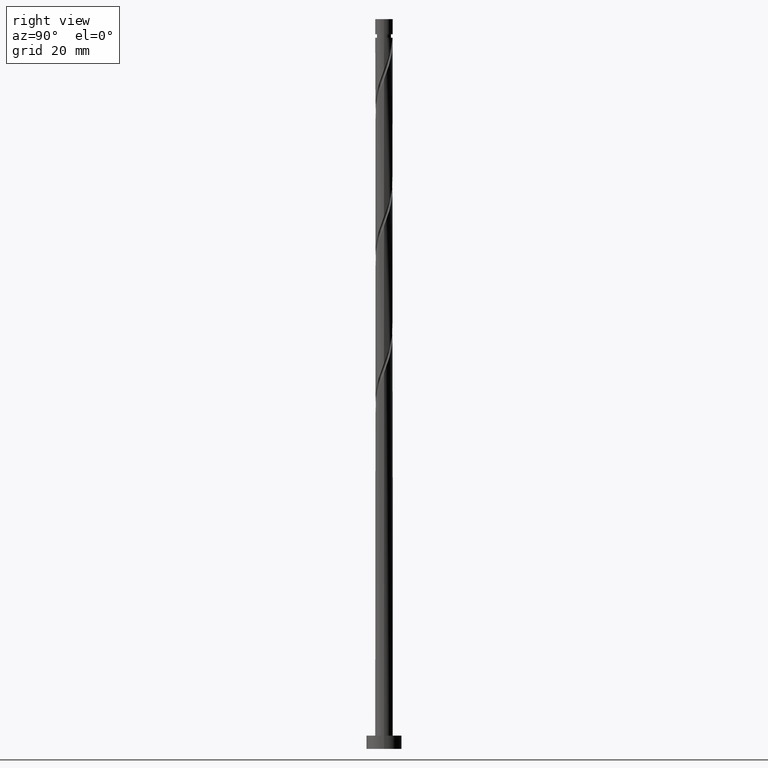
[diagram: clean part render]
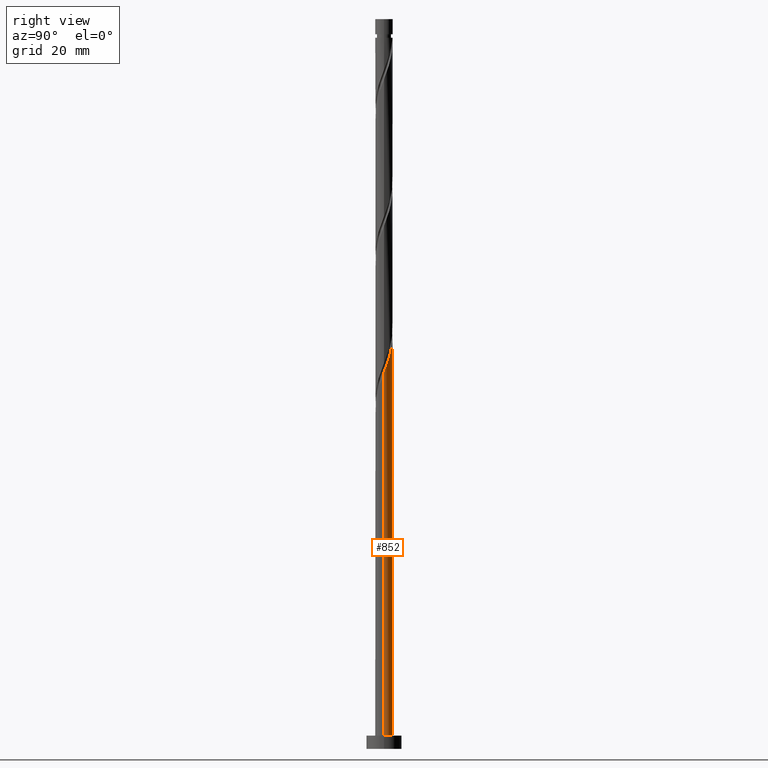
[diagram: same view with one face highlighted and labeled with its STEP entity id]
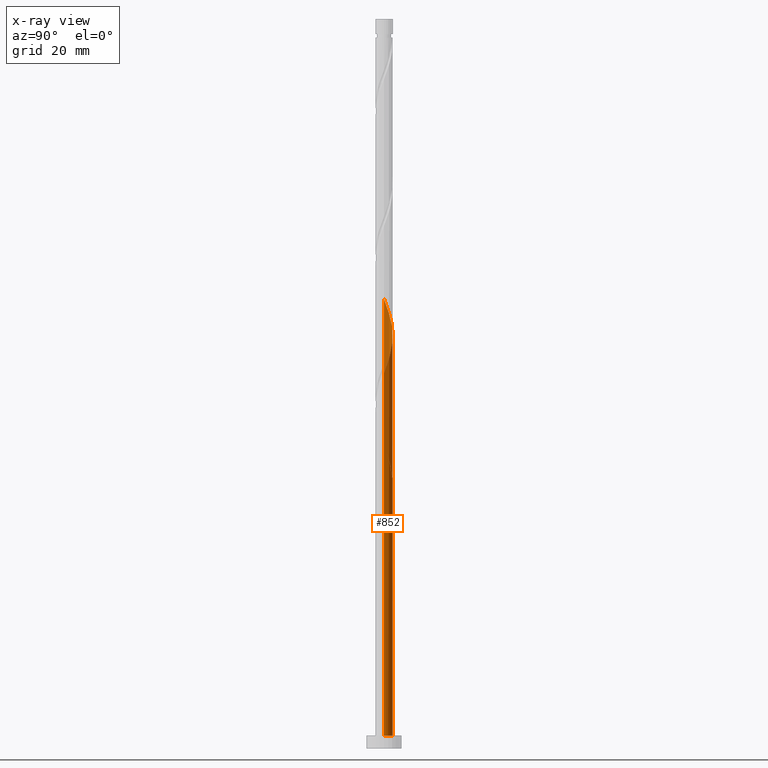
[diagram: x-ray of the same camera — body ghosted, the highlighted face saturated]
A machine part, right view. The second image highlights one B-rep face of the part: STEP entity #852.
The next image is the same camera in x-ray: the body ghosted, the highlighted face saturated — about 0% of this face is hidden behind the body in this view.
In plain terms, the highlighted cylindrical surface (edge-blend (fillet) strip) has radius 2 mm, axis along (-0, -0, -1).
Its self-contained STEP definition (entity closure, byte-faithful):
#31 = FACE_OUTER_BOUND ( 'NONE', #1508, .T. ) ;
#60 = DIRECTION ( 'NONE',  ( 1.000000000000000000, 0.000000000000000000, 0.000000000000000000 ) ) ;
#90 = CARTESIAN_POINT ( 'NONE',  ( -1.907602967534731686, 0.6560338701139444284, 69.20086395896032627 ) ) ;
#93 = CARTESIAN_POINT ( 'NONE',  ( -0.6560338701139447615, 1.907602967534735239, 62.25641951451586209 ) ) ;
#114 = CARTESIAN_POINT ( 'NONE',  ( 1.960000000000003073, 0.3979949748426481748, 86.56197507007139791 ) ) ;
#124 = CARTESIAN_POINT ( 'NONE',  ( 0.8849929959097684318, 1.812764992401017849, 91.42308618118254060 ) ) ;
#132 = CARTESIAN_POINT ( 'NONE',  ( -1.812764992401018072, 0.8849929959097678767, 99.75641951451584077 ) ) ;
#206 = CARTESIAN_POINT ( 'NONE',  ( 2.000000000000001776, 0.2010075630518461387, 86.03183478405064477 ) ) ;
#207 = CARTESIAN_POINT ( 'NONE',  ( 2.000000000000000000, 2.449293598294706414E-16, 165.8000000000000114 ) ) ;
#210 = LINE ( 'NONE', #326, #278 ) ;
#222 = CARTESIAN_POINT ( 'NONE',  ( -1.667354236715041349, 1.104504345536228671, 65.72864173673808352 ) ) ;
#225 = CARTESIAN_POINT ( 'NONE',  ( 2.000000000000002665, -8.972270666171985530E-17, 85.49840841486135901 ) ) ;
#227 = CARTESIAN_POINT ( 'NONE',  ( 0.000000000000000000, 0.000000000000000000, 61.56197507007141212 ) ) ;
#256 = CARTESIAN_POINT ( 'NONE',  ( -1.324673758792283662, 1.498412303996178307, 97.67308618118251218 ) ) ;
#271 = VERTEX_POINT ( 'NONE', #563 ) ;
#275 = CARTESIAN_POINT ( 'NONE',  ( 1.790205940182200806, 0.8917189533347229524, 87.95086395896029785 ) ) ;
#278 = VECTOR ( 'NONE', #360, 1000.000000000000000 ) ;
#280 = CYLINDRICAL_SURFACE ( 'NONE', #1551, 2.000000000000000000 ) ;
#282 =( BOUNDED_CURVE ( )  B_SPLINE_CURVE ( 2, ( #1339, #93, #1730, #1199, #1208, #673, #222, #535, #1711, #1066, #937, #1721, #1608 ),
 .UNSPECIFIED., .F., .T. ) 
 B_SPLINE_CURVE_WITH_KNOTS ( ( 3, 2, 2, 2, 2, 2, 3 ),
 ( 0.000000000000000000, 0.01041666666666662966, 0.02083333333333337034, 0.03125000000000000000, 0.04166666666666662966, 0.05208333333333336340, 0.05453176698144644036 ),
 .UNSPECIFIED. ) 
 CURVE ( )  GEOMETRIC_REPRESENTATION_ITEM ( )  RATIONAL_B_SPLINE_CURVE ( ( 0.9090909090909310430, 0.9013135103398492998, 0.9090909090909310430, 0.9013135103398492998, 0.9090909090909310430, 0.9013135103398492998, 0.9090909090909310430, 0.9013135103398492998, 0.9090909090909310430, 0.9013135103398492998, 0.9090909090909310430, 0.9072628343904245440, 0.9062941362546510504 ) ) 
 REPRESENTATION_ITEM ( '' )  );
#293 = VERTEX_POINT ( 'NONE', #1362 ) ;
#326 = CARTESIAN_POINT ( 'NONE',  ( -2.000000000000000000, 0.000000000000000000, 165.8000000000000114 ) ) ;
#328 = VERTEX_POINT ( 'NONE', #701 ) ;
#342 =( BOUNDED_CURVE ( )  B_SPLINE_CURVE ( 2, ( #1327, #206, #114, #1717, #275, #1357, #1061, #819, #1471, #124, #810, #414, #1345, #1622, #1214, #397, #670, #1602, #256, #1336, #952, #132, #541, #1080, #1614, #803, #933 ),
 .UNSPECIFIED., .F., .T. ) 
 B_SPLINE_CURVE_WITH_KNOTS ( ( 3, 2, 2, 2, 2, 2, 2, 2, 2, 2, 2, 2, 2, 3 ),
 ( 0.1795317669814465167, 0.1875000000000000000, 0.1979166666666666297, 0.2083333333333333703, 0.2187500000000000000, 0.2291666666666666297, 0.2395833333333333703, 0.2500000000000000000, 0.2604166666666666297, 0.2708333333333333703, 0.2812500000000000000, 0.2916666666666666297, 0.3020833333333333703, 0.3045317669814463502 ),
 .UNSPECIFIED. ) 
 CURVE ( )  GEOMETRIC_REPRESENTATION_ITEM ( )  RATIONAL_B_SPLINE_CURVE ( ( 0.9062941362546510504, 0.9031415850403555767, 0.9090909090909310430, 0.9013135103398492998, 0.9090909090909310430, 0.9013135103398492998, 0.9090909090909310430, 0.9013135103398492998, 0.9090909090909310430, 0.9013135103398492998, 0.9090909090909310430, 0.9013135103398492998, 0.9090909090909310430, 0.9013135103398492998, 0.9090909090909310430, 0.9013135103398492998, 0.9090909090909310430, 0.9013135103398492998, 0.9090909090909310430, 0.9013135103398492998, 0.9090909090909310430, 0.9013135103398492998, 0.9090909090909310430, 0.9013135103398492998, 0.9090909090909310430, 0.9072628343904246551, 0.9062941362546511614 ) ) 
 REPRESENTATION_ITEM ( '' )  );
#360 = DIRECTION ( 'NONE',  ( -0.000000000000000000, -0.000000000000000000, -1.000000000000000000 ) ) ;
#362 = ORIENTED_EDGE ( 'NONE', *, *, #626, .F. ) ;
#379 = CARTESIAN_POINT ( 'NONE',  ( -0.8849929959097657672, 1.812764992401015851, 65.03419729229364066 ) ) ;
#397 = CARTESIAN_POINT ( 'NONE',  ( -0.6560338701139447615, 1.907602967534735239, 95.58975284784919779 ) ) ;
#398 = CARTESIAN_POINT ( 'NONE',  ( -0.6353262412077175236, 1.896407278838823096, 64.33975284784918358 ) ) ;
#414 = CARTESIAN_POINT ( 'NONE',  ( 0.3856594865056718890, 1.980049565276634782, 92.81197507007141212 ) ) ;
#445 = EDGE_CURVE ( 'NONE', #1189, #669, #1678, .T. ) ;
#488 = CARTESIAN_POINT ( 'NONE',  ( 2.000000000000000000, 2.449293598294706414E-16, 3.000000000000000000 ) ) ;
#496 = CARTESIAN_POINT ( 'NONE',  ( -1.999999999999999556, -3.454324206476239315E-15, 70.95887505861480804 ) ) ;
#515 = CARTESIAN_POINT ( 'NONE',  ( -1.104504345536226451, 1.667354236715038684, 65.72864173673806931 ) ) ;
#535 = CARTESIAN_POINT ( 'NONE',  ( -1.812764992401018072, 0.8849929959097678767, 66.42308618118252639 ) ) ;
#541 = CARTESIAN_POINT ( 'NONE',  ( -1.896407278838826205, 0.6353262412077193000, 100.4508639589602979 ) ) ;
#563 = CARTESIAN_POINT ( 'NONE',  ( -2.000000000000002665, 4.448750871976942425E-15, 102.1650750815280020 ) ) ;
#617 = EDGE_CURVE ( 'NONE', #1203, #669, #1749, .T. ) ;
#626 = EDGE_CURVE ( 'NONE', #271, #1478, #210, .T. ) ;
#634 = CARTESIAN_POINT ( 'NONE',  ( -0.1228517034671585684, 1.996223298870949403, 62.95086395896028364 ) ) ;
#643 = DIRECTION ( 'NONE',  ( -1.000000000000000000, 0.000000000000000000, 0.000000000000000000 ) ) ;
#652 = CARTESIAN_POINT ( 'NONE',  ( -0.3856594865056697241, 1.980049565276632340, 63.64530840340476914 ) ) ;
#669 = VERTEX_POINT ( 'NONE', #1313 ) ;
#670 = CARTESIAN_POINT ( 'NONE',  ( -0.8917189533347235075, 1.790205940182200361, 96.28419729229361224 ) ) ;
#673 = CARTESIAN_POINT ( 'NONE',  ( -1.521943481029064849, 1.324015695162690687, 65.03419729229365487 ) ) ;
#701 = CARTESIAN_POINT ( 'NONE',  ( 0.3979949748426487299, 1.959999999999999520, 61.56197507007141212 ) ) ;
#702 = EDGE_CURVE ( 'NONE', #293, #1189, #282, .T. ) ;
#714 = ORIENTED_EDGE ( 'NONE', *, *, #702, .F. ) ;
#750 = DIRECTION ( 'NONE',  ( -0.000000000000000000, -0.000000000000000000, -1.000000000000000000 ) ) ;
#754 = CIRCLE ( 'NONE', #1654, 2.000000000000000000 ) ;
#788 = ORIENTED_EDGE ( 'NONE', *, *, #1607, .F. ) ;
#803 = CARTESIAN_POINT ( 'NONE',  ( -2.000000000000003109, 0.06148390331534657471, 102.0019113934998671 ) ) ;
#810 = CARTESIAN_POINT ( 'NONE',  ( 0.6353262412077200771, 1.896407278838825983, 92.11753062562695504 ) ) ;
#819 = CARTESIAN_POINT ( 'NONE',  ( 1.324015695162691797, 1.521943481029063294, 90.03419729229359803 ) ) ;
#840 = CARTESIAN_POINT ( 'NONE',  ( 0.000000000000000000, 0.000000000000000000, 165.8000000000000114 ) ) ;
#852 = ADVANCED_FACE ( 'NONE', ( #31 ), #280, .T. ) ;
#869 = AXIS2_PLACEMENT_3D ( 'NONE', #1428, #1538, #60 ) ;
#894 = CARTESIAN_POINT ( 'NONE',  ( 0.1399560795713525041, 2.012397032465266911, 62.25641951451586209 ) ) ;
#912 = CARTESIAN_POINT ( 'NONE',  ( -1.790205940182196809, 0.8917189533347228414, 68.50641951451584077 ) ) ;
#921 = CARTESIAN_POINT ( 'NONE',  ( 0.3979949748426487854, 1.959999999999999520, 61.56197507007141212 ) ) ;
#933 = CARTESIAN_POINT ( 'NONE',  ( -2.000000000000002665, 4.448750871976943214E-15, 102.1650750815280020 ) ) ;
#937 = CARTESIAN_POINT ( 'NONE',  ( -1.996223298870952290, 0.1228517034671595259, 68.50641951451584077 ) ) ;
#952 = CARTESIAN_POINT ( 'NONE',  ( -1.667354236715041349, 1.104504345536228671, 99.06197507007139791 ) ) ;
#969 = ORIENTED_EDGE ( 'NONE', *, *, #617, .T. ) ;
#1027 = ORIENTED_EDGE ( 'NONE', *, *, #445, .F. ) ;
#1036 = CARTESIAN_POINT ( 'NONE',  ( -1.672808912829663486, 1.127404036555500921, 67.81197507007142633 ) ) ;
#1061 = CARTESIAN_POINT ( 'NONE',  ( 1.498412303996179196, 1.324673758792282108, 89.33975284784916937 ) ) ;
#1066 = CARTESIAN_POINT ( 'NONE',  ( -1.980049565276635226, 0.3856594865056707233, 67.81197507007141212 ) ) ;
#1080 = CARTESIAN_POINT ( 'NONE',  ( -1.980049565276635226, 0.3856594865056707233, 101.1453084034047407 ) ) ;
#1110 = DIRECTION ( 'NONE',  ( -0.000000000000000000, -0.000000000000000000, -1.000000000000000000 ) ) ;
#1131 = ORIENTED_EDGE ( 'NONE', *, *, #1194, .T. ) ;
#1189 = VERTEX_POINT ( 'NONE', #1535 ) ;
#1194 = EDGE_CURVE ( 'NONE', #1703, #1203, #1691, .T. ) ;
#1199 = CARTESIAN_POINT ( 'NONE',  ( -1.127404036555502254, 1.672808912829665706, 63.64530840340475493 ) ) ;
#1203 = VERTEX_POINT ( 'NONE', #488 ) ;
#1208 = CARTESIAN_POINT ( 'NONE',  ( -1.324673758792283662, 1.498412303996178307, 64.33975284784919779 ) ) ;
#1214 = CARTESIAN_POINT ( 'NONE',  ( -0.3979949748426481193, 1.960000000000003073, 94.89530840340474072 ) ) ;
#1217 = DIRECTION ( 'NONE',  ( -1.000000000000000000, 0.000000000000000000, 0.000000000000000000 ) ) ;
#1310 = CARTESIAN_POINT ( 'NONE',  ( -1.959999999999999520, 0.3979949748426483969, 69.89530840340471229 ) ) ;
#1313 = CARTESIAN_POINT ( 'NONE',  ( -2.000000000000000000, 0.000000000000000000, 3.000000000000000000 ) ) ;
#1327 = CARTESIAN_POINT ( 'NONE',  ( 2.000000000000002665, -8.972270666171985530E-17, 85.49840841486135901 ) ) ;
#1336 = CARTESIAN_POINT ( 'NONE',  ( -1.521943481029064849, 1.324015695162690687, 98.36753062562696925 ) ) ;
#1337 = CARTESIAN_POINT ( 'NONE',  ( -1.999999999999999556, -3.454324206476239315E-15, 70.95887505861480804 ) ) ;
#1339 = CARTESIAN_POINT ( 'NONE',  ( -0.3979949748426481193, 1.960000000000003073, 61.56197507007141212 ) ) ;
#1345 = CARTESIAN_POINT ( 'NONE',  ( 0.1228517034671607472, 1.996223298870952290, 93.50641951451586920 ) ) ;
#1346 = EDGE_CURVE ( 'NONE', #1478, #328, #1565, .T. ) ;
#1357 = CARTESIAN_POINT ( 'NONE',  ( 1.672808912829666372, 1.127404036555501587, 88.64530840340472650 ) ) ;
#1362 = CARTESIAN_POINT ( 'NONE',  ( -0.3979949748426481193, 1.960000000000003073, 61.56197507007141212 ) ) ;
#1404 = ORIENTED_EDGE ( 'NONE', *, *, #1346, .F. ) ;
#1428 = CARTESIAN_POINT ( 'NONE',  ( 0.000000000000000000, 0.000000000000000000, 3.000000000000000000 ) ) ;
#1451 = EDGE_CURVE ( 'NONE', #293, #328, #754, .T. ) ;
#1471 = CARTESIAN_POINT ( 'NONE',  ( 1.104504345536229337, 1.667354236715040905, 90.72864173673809773 ) ) ;
#1478 = VERTEX_POINT ( 'NONE', #496 ) ;
#1508 = EDGE_LOOP ( 'NONE', ( #788, #1131, #969, #1027, #714, #1696, #1404, #362 ) ) ;
#1524 = VECTOR ( 'NONE', #750, 1000.000000000000000 ) ;
#1535 = CARTESIAN_POINT ( 'NONE',  ( -2.000000000000003109, -1.136487617715118118E-15, 68.83174174819468760 ) ) ;
#1538 = DIRECTION ( 'NONE',  ( 0.000000000000000000, 0.000000000000000000, 1.000000000000000000 ) ) ;
#1547 = CARTESIAN_POINT ( 'NONE',  ( -2.000000000000000000, 0.000000000000000000, 165.8000000000000114 ) ) ;
#1551 = AXIS2_PLACEMENT_3D ( 'NONE', #840, #1110, #1217 ) ;
#1560 = DIRECTION ( 'NONE',  ( -0.000000000000000000, -0.000000000000000000, -1.000000000000000000 ) ) ;
#1565 =( BOUNDED_CURVE ( )  B_SPLINE_CURVE ( 2, ( #1337, #1746, #1310, #90, #912, #1036, #1588, #1708, #515, #379, #398, #652, #634, #894, #921 ),
 .UNSPECIFIED., .F., .T. ) 
 B_SPLINE_CURVE_WITH_KNOTS ( ( 3, 2, 2, 2, 2, 2, 2, 3 ),
 ( 0.9295317669814462391, 0.9375000000000000000, 0.9479166666666666297, 0.9583333333333333703, 0.9687500000000000000, 0.9791666666666666297, 0.9895833333333333703, 1.000000000000000000 ),
 .UNSPECIFIED. ) 
 CURVE ( )  GEOMETRIC_REPRESENTATION_ITEM ( )  RATIONAL_B_SPLINE_CURVE ( ( 0.9062941362546447222, 0.9031415850403488044, 0.9090909090909243817, 0.9013135103398426384, 0.9090909090909243817, 0.9013135103398426384, 0.9090909090909243817, 0.9013135103398426384, 0.9090909090909243817, 0.9013135103398426384, 0.9090909090909243817, 0.9013135103398426384, 0.9090909090909243817, 0.9013135103398426384, 0.9090909090909243817 ) ) 
 REPRESENTATION_ITEM ( '' )  );
#1588 = CARTESIAN_POINT ( 'NONE',  ( -1.498412303996174977, 1.324673758792281442, 67.11753062562695504 ) ) ;
#1602 = CARTESIAN_POINT ( 'NONE',  ( -1.127404036555502254, 1.672808912829665706, 96.97864173673806931 ) ) ;
#1607 = EDGE_CURVE ( 'NONE', #1703, #271, #342, .T. ) ;
#1608 = CARTESIAN_POINT ( 'NONE',  ( -2.000000000000003109, -1.136487617715118118E-15, 68.83174174819468760 ) ) ;
#1614 = CARTESIAN_POINT ( 'NONE',  ( -1.996223298870952290, 0.1228517034671595259, 101.8397528478491836 ) ) ;
#1622 = CARTESIAN_POINT ( 'NONE',  ( -0.1399560795713503114, 2.012397032465270463, 94.20086395896029785 ) ) ;
#1654 = AXIS2_PLACEMENT_3D ( 'NONE', #227, #1699, #643 ) ;
#1678 = LINE ( 'NONE', #1547, #1524 ) ;
#1691 = LINE ( 'NONE', #207, #1719 ) ;
#1696 = ORIENTED_EDGE ( 'NONE', *, *, #1451, .T. ) ;
#1699 = DIRECTION ( 'NONE',  ( 0.000000000000000000, -0.000000000000000000, -1.000000000000000000 ) ) ;
#1703 = VERTEX_POINT ( 'NONE', #225 ) ;
#1708 = CARTESIAN_POINT ( 'NONE',  ( -1.324015695162688022, 1.521943481029062628, 66.42308618118252639 ) ) ;
#1711 = CARTESIAN_POINT ( 'NONE',  ( -1.896407278838826205, 0.6353262412077193000, 67.11753062562698346 ) ) ;
#1717 = CARTESIAN_POINT ( 'NONE',  ( 1.907602967534735683, 0.6560338701139443174, 87.25641951451586920 ) ) ;
#1719 = VECTOR ( 'NONE', #1560, 1000.000000000000000 ) ;
#1721 = CARTESIAN_POINT ( 'NONE',  ( -2.000000000000003109, 0.06148390331534428488, 68.66857806016653853 ) ) ;
#1730 = CARTESIAN_POINT ( 'NONE',  ( -0.8917189533347235075, 1.790205940182200361, 62.95086395896028364 ) ) ;
#1746 = CARTESIAN_POINT ( 'NONE',  ( -2.000000000000000000, 0.2010075630518410594, 70.42544868942555070 ) ) ;
#1749 = CIRCLE ( 'NONE', #869, 2.000000000000000000 ) ;